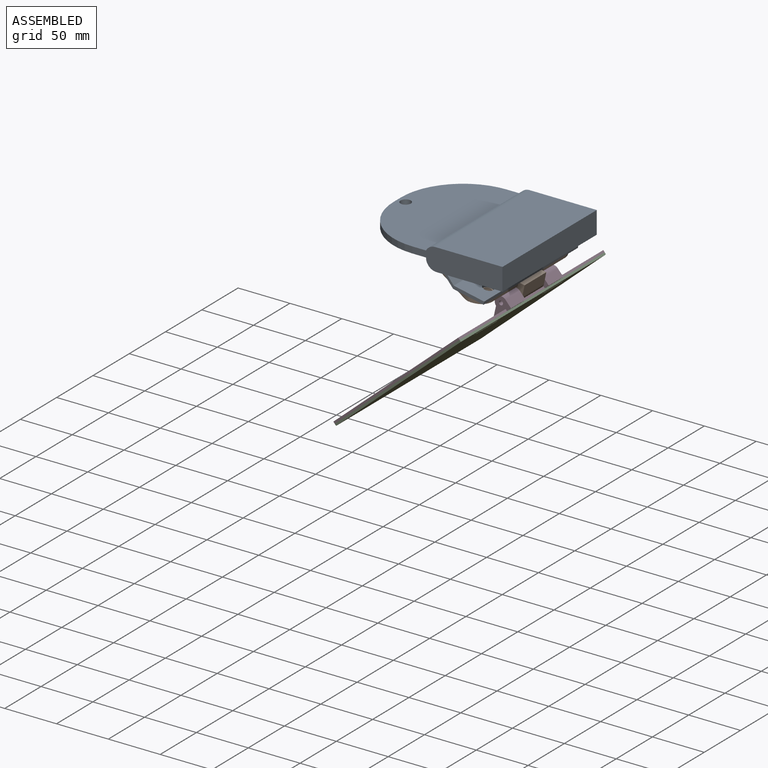
[diagram: assembled view]
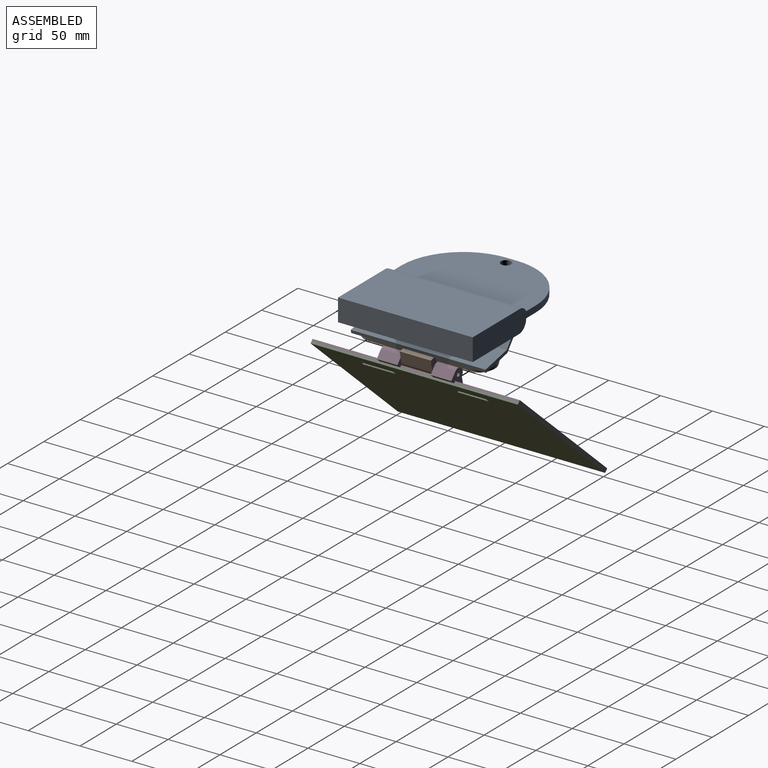
[diagram: assembled view, second angle]
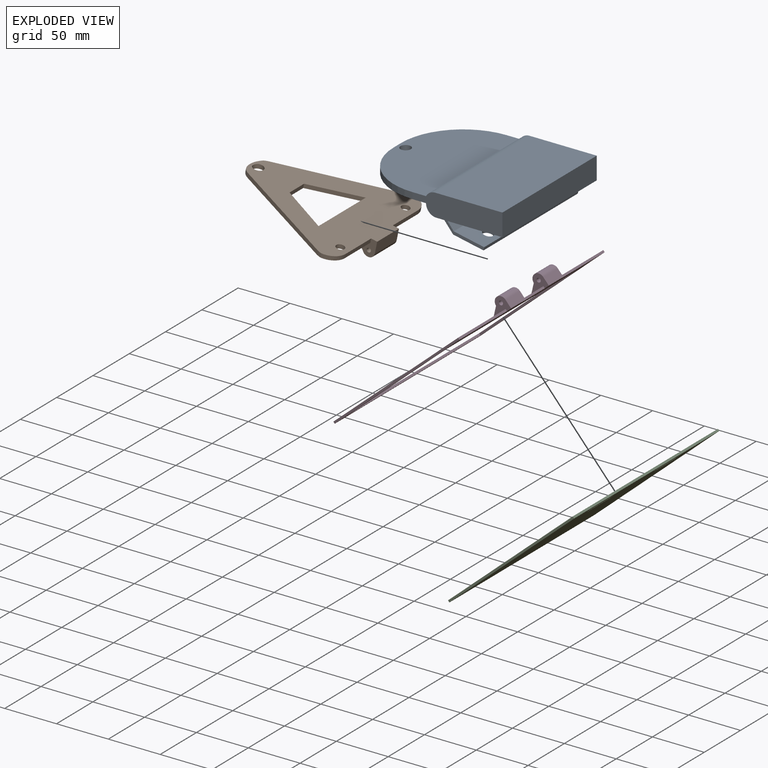
[diagram: exploded view]
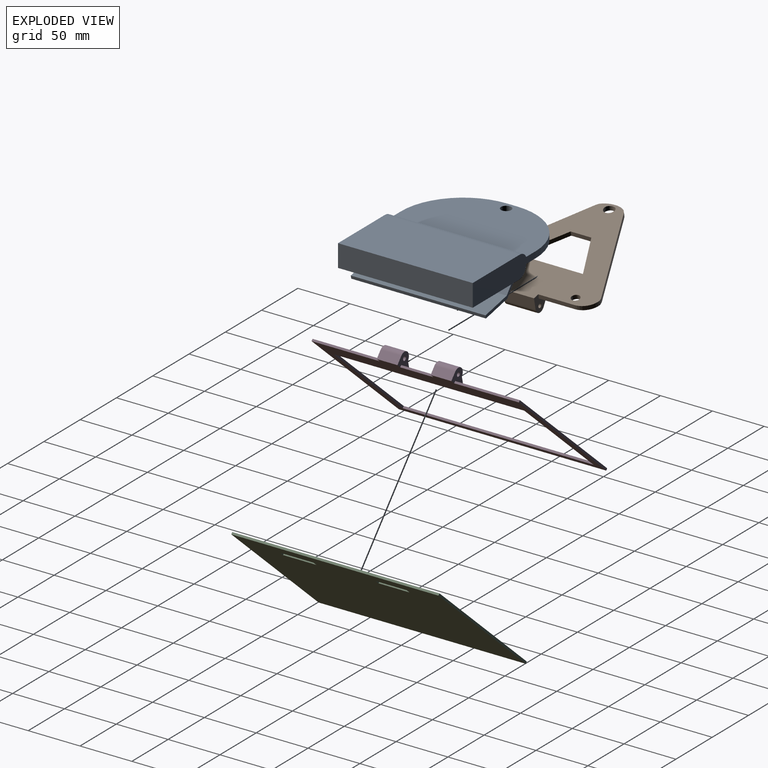
[diagram: exploded view, second angle]
ASSEMBLY  parts=4 mates=3
PART A: 22 faces, bbox 146.9x130x37.9 mm
  f0: plane 130x7.38mm, normal (0.77,0,0.63), area 1238.3mm2, adj f1,f12,f13,f14
  f1: plane 130x53.05mm, normal (0,0,-1), area 6896mm2, adj f0,f2,f13,f14
  f2: plane 130x21.54mm, normal (1,0,0), area 2800mm2, adj f1,f3,f13,f14
  f3: plane 130x64.88mm, normal (0,0,1), area 8433.9mm2, adj f2,f13,f14,f20
  f4: plane 130x73.17mm, normal (0,0,1), area 7888mm2, adj f5,f13,f14,f17,f18,f19,f20
  f5: plane 10x6.14mm, normal (-1,0,0), area 61.4mm2, adj f4,f6,f18,f19
  f6: plane 130x73.17mm, normal (0,0,-1), area 7888mm2, adj f5,f7,f13,f14,f17,f18,f19
  f7: plane 130x0.03mm, normal (-1,0,0), area 3.7mm2, adj f6,f13,f14,f21
  f8: plane 130x7.69mm, normal (0,0,-1), area 1000.2mm2, adj f9,f13,f14,f21
  f9: plane 130x10.32mm, normal (-0.77,0,-0.63), area 1731.3mm2, adj f8,f10,f13,f14
  f10: plane 130x29.39mm, normal (-0.2,0,-0.98), area 3742.9mm2, adj f9,f11,f13,f14,f15,f16
  f11: plane 130x2.94mm, normal (0.98,0,-0.2), area 390mm2, adj f10,f12,f13,f14
  f12: plane 130x29.39mm, normal (0.2,0,0.98), area 3742.9mm2, adj f0,f11,f13,f14,f15,f16
  f13: plane 86.91x37.89mm, normal (0,-1,0), area 1750.5mm2, adj f0,f1,f2,f3,f4,f6,f7,f8
  f14: plane 86.91x37.89mm, normal (0,1,0), area 1750.5mm2, adj f0,f1,f2,f3,f4,f6,f7,f8
  f15: cylinder r=5mm len=10.4mm, axis (-0.2,0,-0.98), area 94.2mm2, adj f10,f12
  f16: cylinder r=5mm len=10.4mm, axis (-0.2,0,-0.98), area 94.2mm2, adj f10,f12
  f17: cylinder r=5mm len=10mm, axis (0,0,-1), area 192.9mm2, adj f4,f6
  f18: cylinder r=60mm len=60mm, axis (0,0,-1), area 578.6mm2, adj f4,f5,f6,f14
  f19: cylinder r=60mm len=60mm, axis (0,0,1), area 578.6mm2, adj f4,f5,f6,f13
  f20: cylinder r=10mm len=130mm, axis (0,-1,0), area 1416.4mm2, adj f3,f4,f13,f14
  f21: cylinder r=10mm len=130mm, axis (0,-1,0), area 2042mm2, adj f7,f8,f13,f14
PART B: 27 faces, bbox 129.8x18.6x136 mm
  f0: plane 130x129.81mm, normal (0,-1,0), area 7958.8mm2, adj f2,f4,f5,f6,f7,f8,f9,f13
  f1: plane 131x129.81mm, normal (0,1,0), area 8475.8mm2, adj f3,f4,f5,f6,f7,f8,f9,f11
  f2: plane 3x1.09mm, normal (0,0,1), area 3.3mm2, adj f0,f3,f16,f21
  f3: plane 23.46x5mm, normal (0,0.98,0.2), area 74.1mm2, adj f1,f2,f16,f21,f22
  f4: plane 35x4mm, normal (0,0,-1), area 140mm2, adj f0,f1,f8,f19
  f5: plane 35x4mm, normal (0,0,-1), area 140mm2, adj f0,f1,f9,f17
  f6: cylinder r=4mm len=8mm, axis (0,1,0), area 100.5mm2, adj f0,f1
  f7: cylinder r=4mm len=8mm, axis (0,1,0), area 100.5mm2, adj f0,f1
  f8: plane 19.64x17mm, normal (-1,0,0), area 187.2mm2, adj f0,f1,f4,f10,f11,f12,f13
  f9: plane 19.64x17mm, normal (1,0,0), area 187.2mm2, adj f0,f1,f5,f10,f11,f12,f13
  f10: cylinder r=6mm len=30mm, axis (1,0,0), area 462.9mm2, adj f8,f9,f11,f13
  f11: plane 30x10.99mm, normal (0,0,-1), area 329.7mm2, adj f1,f8,f9,f10
  f12: cylinder r=2mm len=30mm, axis (1,0,0), area 377mm2, adj f8,f9
  f13: plane 30x10.24mm, normal (0,-0.64,0.77), area 401.2mm2, adj f0,f8,f9,f10
  f14: plane 103.4x49.45mm, normal (0.9,0,0.43), area 458.5mm2, adj f0,f1,f16,f18
  f15: plane 103.4x49.45mm, normal (-0.9,0,0.43), area 458.5mm2, adj f0,f1,f20,f21
  f16: cylinder r=15mm len=13.53mm, axis (0,1,0), area 59.2mm2, adj f0,f1,f2,f3,f14
  f17: cylinder r=15mm len=14.9mm, axis (0,-1,0), area 87.4mm2, adj f0,f1,f5,f18
  f18: cylinder r=15mm len=4.77mm, axis (0,1,0), area 19.9mm2, adj f0,f1,f14,f17
  f19: cylinder r=15mm len=14.9mm, axis (0,1,0), area 87.4mm2, adj f0,f1,f4,f20
  f20: cylinder r=15mm len=4.77mm, axis (0,1,0), area 19.9mm2, adj f0,f1,f15,f19
  f21: cylinder r=15mm len=13.53mm, axis (0,-1,0), area 59.2mm2, adj f0,f1,f2,f3,f15
  f22: cylinder r=5mm len=10.96mm, axis (0,0.98,0.2), area 126mm2, adj f0,f1,f3
  f23: plane 44.65x22.5mm, normal (0.89,0,-0.45), area 200mm2, adj f0,f1,f24,f26
  f24: plane 65x4mm, normal (0,0,1), area 260mm2, adj f0,f1,f23,f25
  f25: plane 44.65x22.5mm, normal (-0.89,0,-0.45), area 200mm2, adj f0,f1,f24,f26
  f26: plane 20x4mm, normal (0,0,-1), area 80mm2, adj f0,f1,f23,f25
PART C: 14 faces, bbox 160x200x2 mm
  f0: plane 160x2mm, normal (0,1,0), area 320mm2, adj f1,f11,f12,f13
  f1: plane 200x2mm, normal (-1,0,0), area 400mm2, adj f0,f2,f12,f13
  f2: plane 160x2mm, normal (0,-1,0), area 320mm2, adj f1,f11,f12,f13
  f3: plane 5.33x2mm, normal (0,1,0), area 10.7mm2, adj f4,f9,f12,f13
  f4: plane 32.09x2mm, normal (1,0,0), area 64.2mm2, adj f3,f5,f12,f13
  f5: plane 5.33x2mm, normal (0,-1,0), area 10.7mm2, adj f4,f9,f12,f13
  f6: plane 5.33x2mm, normal (0,1,0), area 10.7mm2, adj f7,f10,f12,f13
  f7: plane 29.99x2mm, normal (1,0,0), area 60mm2, adj f6,f8,f12,f13
  f8: plane 5.33x2mm, normal (0,-1,0), area 10.7mm2, adj f7,f10,f12,f13
  f9: plane 32.09x2mm, normal (-1,0,0), area 64.2mm2, adj f3,f5,f12,f13
  f10: plane 29.99x2mm, normal (-1,0,0), area 60mm2, adj f6,f8,f12,f13
  f11: plane 200x2mm, normal (1,0,0), area 400mm2, adj f0,f2,f12,f13
  f12: plane 200x160mm, normal (0,0,1), area 31669.1mm2, adj f0,f1,f2,f3,f4,f5,f6,f7
  f13: plane 200x160mm, normal (0,0,-1), area 31669.1mm2, adj f0,f1,f2,f3,f4,f5,f6,f7
PART D: 24 faces, bbox 165.1x14x200.1 mm
  f0: plane 20.76x14mm, normal (0,0,-1), area 153.9mm2, adj f2,f3,f4,f5,f6,f8,f17
  f1: plane 20.76x14mm, normal (0,0,1), area 153.9mm2, adj f2,f3,f4,f5,f6,f7,f17
  f2: plane 20x8.77mm, normal (0.59,0.81,0), area 216.4mm2, adj f0,f1,f4,f17
  f3: cylinder r=2mm len=20mm, axis (0,0,-1), area 251.3mm2, adj f0,f1
  f4: cylinder r=6mm len=20mm, axis (0,0,-1), area 374.5mm2, adj f0,f1,f2,f6
  f5: plane 200.12x165.11mm, normal (0,-1,0), area 8840.5mm2, adj f0,f1,f6,f7,f8,f9,f10,f11
  f6: plane 20x7.79mm, normal (-1,0,0), area 155.8mm2, adj f0,f1,f4,f5
  f7: plane 62.52x2mm, normal (-1,0,0), area 125mm2, adj f1,f5,f9,f17
  f8: plane 32x2mm, normal (-1,0,0), area 64mm2, adj f0,f5,f17,f19
  f9: plane 160x2mm, normal (0,0,1), area 320mm2, adj f5,f7,f16,f17
  f10: plane 65.6x2mm, normal (-1,0,0), area 131.2mm2, adj f5,f11,f17,f18
  f11: plane 160x2mm, normal (0,0,-1), area 320mm2, adj f5,f10,f16,f17
  f12: plane 184.12x2mm, normal (1,0,0), area 368.2mm2, adj f5,f13,f15,f17
  f13: plane 127x2mm, normal (0,0,-1), area 254mm2, adj f5,f12,f14,f17
  f14: plane 184.12x2mm, normal (-1,0,0), area 368.2mm2, adj f5,f13,f15,f17
  f15: plane 127x2mm, normal (0,0,1), area 254mm2, adj f5,f12,f14,f17
  f16: plane 200.12x2mm, normal (1,0,0), area 400.2mm2, adj f5,f9,f11,f17
  f17: plane 200.12x160mm, normal (0,1,0), area 8010.3mm2, adj f0,f1,f2,f7,f8,f9,f10,f11
  f18: plane 20.76x14mm, normal (0,0,-1), area 153.9mm2, adj f5,f10,f17,f20,f21,f22,f23
  f19: plane 20.76x14mm, normal (0,0,1), area 153.9mm2, adj f5,f8,f17,f20,f21,f22,f23
  f20: plane 20x8.77mm, normal (0.59,0.81,0), area 216.4mm2, adj f17,f18,f19,f23
  f21: cylinder r=2mm len=20mm, axis (0,0,-1), area 251.3mm2, adj f18,f19
  f22: plane 20x7.79mm, normal (-1,0,0), area 155.8mm2, adj f5,f18,f19,f23
  f23: cylinder r=6mm len=20mm, axis (0,0,-1), area 374.5mm2, adj f18,f19,f20,f22
PLACE A t=(-42.26,22.67,-17.44)mm fixed
PLACE B rot(axis=(0.53,-0.53,-0.66),113.5deg) t=(-43.57,22.67,-17.17)mm
PLACE C rot(axis=(0.35,0,-0.94),180deg) t=(-9.15,-143.92,-40.92)mm
PLACE D rot(axis=(-0.26,0.68,0.68),151.2deg) t=(-11.78,56.2,-37.91)mm
MATE fastened C.f12 <-> D.f5  axis (0.66,0,-0.75) through (-130.82,-143.92,-144.83)mm
MATE revolute D.f3 <-> B.f10  axis (0,-1,0) through (-16.4,-58.33,-33.97)mm
MATE fastened A.f15 <-> B.f7  axis (-0.2,0,-0.98) through (-22.81,-87.33,-21.43)mm
